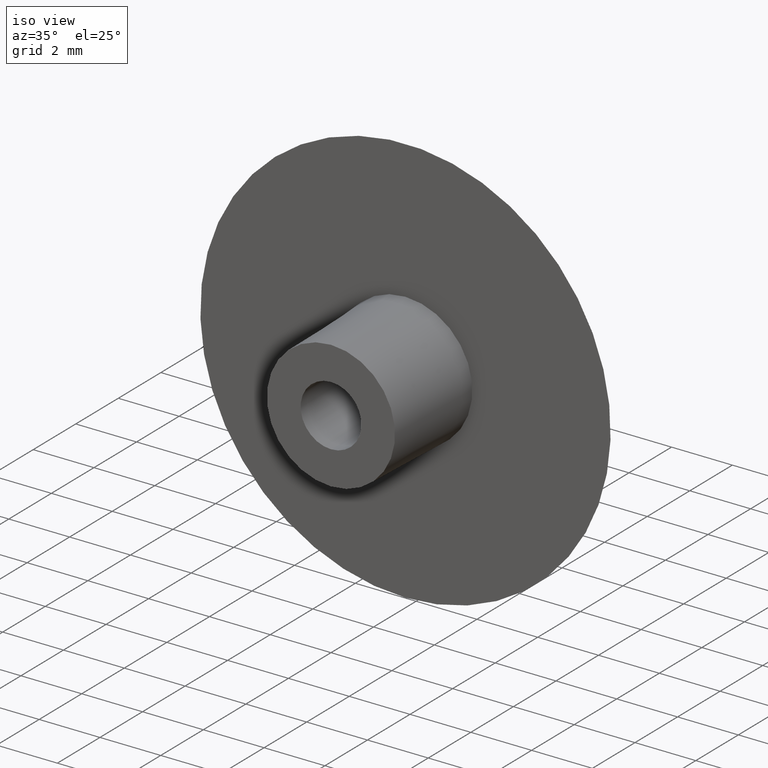
[diagram: clean part render]
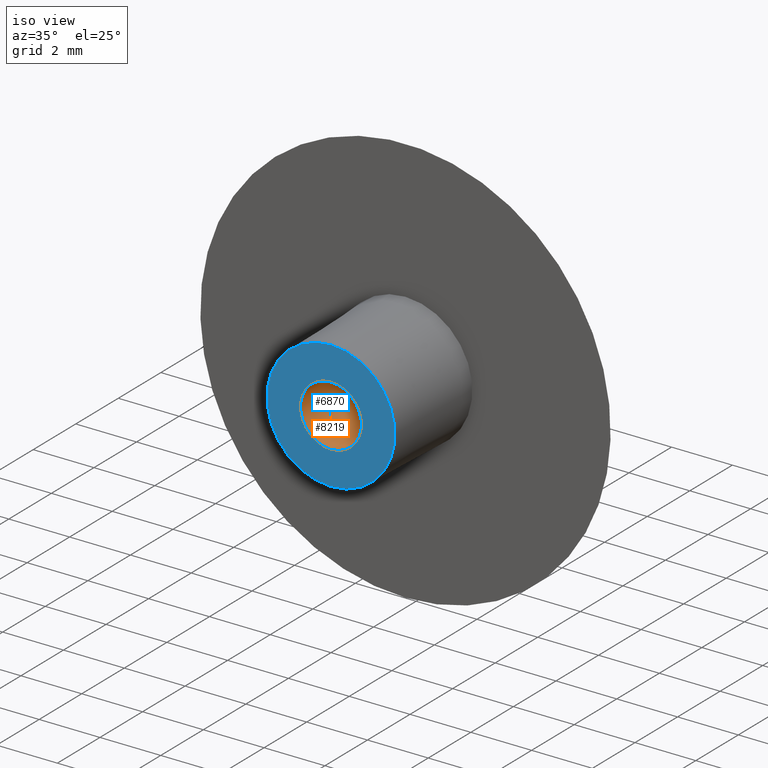
[diagram: same view with the hole feature highlighted: cylindrical wall and planar end face, labeled with their STEP entity ids]
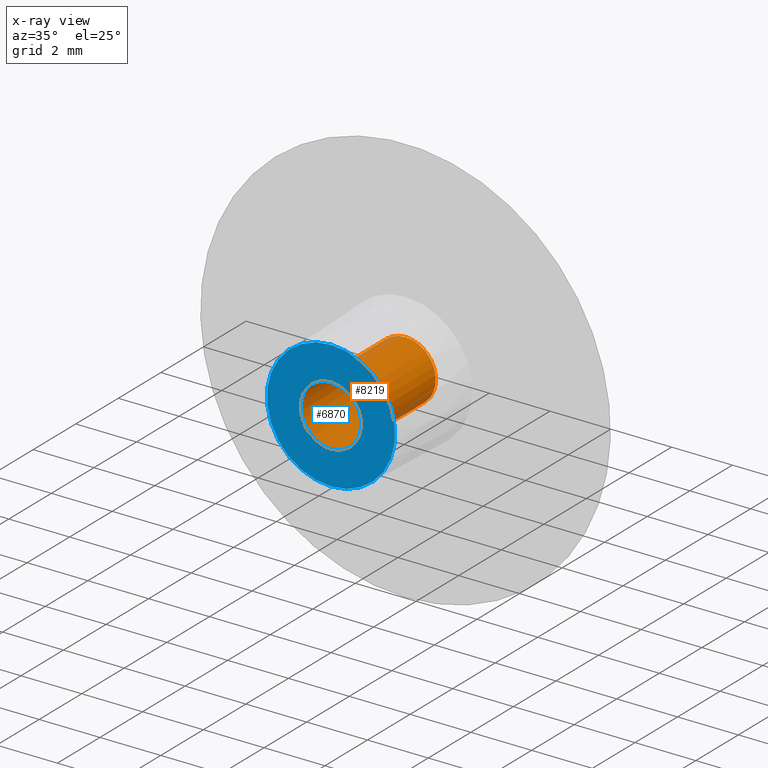
[diagram: x-ray of the same camera — body ghosted, the hole faces saturated]
A machine part, iso view. The highlighted faces form one hole feature of diameter 2 mm: the cylindrical wall (entity #8219, orange) and its adjacent planar end face (entity #6870, blue) — they share a circular edge in the B-rep.
The next image is the same camera in x-ray (body ghosted, the hole faces saturated) — the bore reads through the body.
Wall:
#141 = DIRECTION ( 'NONE',  ( -0.000000000000000000, -1.000000000000000000, -0.000000000000000000 ) ) ;
#699 = CARTESIAN_POINT ( 'NONE',  ( 0.000000000000000000, 3.500000000000000000, 0.000000000000000000 ) ) ;
#1510 = CARTESIAN_POINT ( 'NONE',  ( 0.000000000000000000, 3.500000000000000000, 0.000000000000000000 ) ) ;
#1673 = DIRECTION ( 'NONE',  ( -0.000000000000000000, -1.000000000000000000, -0.000000000000000000 ) ) ;
#1768 = ORIENTED_EDGE ( 'NONE', *, *, #11433, .T. ) ;
#2398 = DIRECTION ( 'NONE',  ( -0.000000000000000000, -1.000000000000000000, -0.000000000000000000 ) ) ;
#2593 = CIRCLE ( 'NONE', #9785, 1.000000000000000000 ) ;
#2891 = EDGE_CURVE ( 'NONE', #6601, #6601, #2593, .T. ) ;
#3510 = AXIS2_PLACEMENT_3D ( 'NONE', #10842, #141, #4547 ) ;
#3589 = EDGE_LOOP ( 'NONE', ( #1768 ) ) ;
#4184 = DIRECTION ( 'NONE',  ( 0.000000000000000000, 0.000000000000000000, -1.000000000000000000 ) ) ;
#4547 = DIRECTION ( 'NONE',  ( 0.000000000000000000, 0.000000000000000000, -1.000000000000000000 ) ) ;
#5058 = CARTESIAN_POINT ( 'NONE',  ( 0.000000000000000000, 3.500000000000000000, -1.000000000000000000 ) ) ;
#5767 = ORIENTED_EDGE ( 'NONE', *, *, #2891, .F. ) ;
#6158 = VERTEX_POINT ( 'NONE', #9500 ) ;
#6601 = VERTEX_POINT ( 'NONE', #5058 ) ;
#6783 = FACE_OUTER_BOUND ( 'NONE', #3589, .T. ) ;
#8219 = ADVANCED_FACE ( 'NONE', ( #6783, #10815 ), #9159, .F. ) ;
#8766 = DIRECTION ( 'NONE',  ( 0.000000000000000000, 0.000000000000000000, -1.000000000000000000 ) ) ;
#8808 = CIRCLE ( 'NONE', #3510, 1.000000000000000444 ) ;
#9159 = CYLINDRICAL_SURFACE ( 'NONE', #11167, 1.000000000000000222 ) ;
#9500 = CARTESIAN_POINT ( 'NONE',  ( 0.000000000000000000, 0.000000000000000000, -1.000000000000000444 ) ) ;
#9785 = AXIS2_PLACEMENT_3D ( 'NONE', #1510, #2398, #4184 ) ;
#9930 = EDGE_LOOP ( 'NONE', ( #5767 ) ) ;
#10815 = FACE_OUTER_BOUND ( 'NONE', #9930, .T. ) ;
#10842 = CARTESIAN_POINT ( 'NONE',  ( 0.000000000000000000, 0.000000000000000000, 0.000000000000000000 ) ) ;
#11167 = AXIS2_PLACEMENT_3D ( 'NONE', #699, #1673, #8766 ) ;
#11433 = EDGE_CURVE ( 'NONE', #6158, #6158, #8808, .T. ) ;
End face:
#141 = DIRECTION ( 'NONE',  ( -0.000000000000000000, -1.000000000000000000, -0.000000000000000000 ) ) ;
#359 = CIRCLE ( 'NONE', #7577, 2.108349274507870685 ) ;
#1725 = CARTESIAN_POINT ( 'NONE',  ( 1.000000000000000444, -7.523163845262640051E-34, 0.000000000000000000 ) ) ;
#2281 = AXIS2_PLACEMENT_3D ( 'NONE', #1725, #6958, #9701 ) ;
#2654 = ORIENTED_EDGE ( 'NONE', *, *, #6195, .T. ) ;
#3510 = AXIS2_PLACEMENT_3D ( 'NONE', #10842, #141, #4547 ) ;
#4326 = EDGE_LOOP ( 'NONE', ( #9337 ) ) ;
#4344 = CARTESIAN_POINT ( 'NONE',  ( 0.000000000000000000, 0.000000000000000000, 0.000000000000000000 ) ) ;
#4547 = DIRECTION ( 'NONE',  ( 0.000000000000000000, 0.000000000000000000, -1.000000000000000000 ) ) ;
#5249 = DIRECTION ( 'NONE',  ( 0.000000000000000000, 0.000000000000000000, -1.000000000000000000 ) ) ;
#5765 = VERTEX_POINT ( 'NONE', #10754 ) ;
#6158 = VERTEX_POINT ( 'NONE', #9500 ) ;
#6195 = EDGE_CURVE ( 'NONE', #5765, #5765, #359, .T. ) ;
#6593 = EDGE_LOOP ( 'NONE', ( #2654 ) ) ;
#6870 = ADVANCED_FACE ( 'NONE', ( #11473, #7605 ), #7072, .T. ) ;
#6958 = DIRECTION ( 'NONE',  ( 0.000000000000000000, -1.000000000000000000, -0.000000000000000000 ) ) ;
#7072 = PLANE ( 'NONE',  #2281 ) ;
#7577 = AXIS2_PLACEMENT_3D ( 'NONE', #4344, #10554, #5249 ) ;
#7605 = FACE_BOUND ( 'NONE', #4326, .T. ) ;
#8808 = CIRCLE ( 'NONE', #3510, 1.000000000000000444 ) ;
#9337 = ORIENTED_EDGE ( 'NONE', *, *, #11433, .F. ) ;
#9500 = CARTESIAN_POINT ( 'NONE',  ( 0.000000000000000000, 0.000000000000000000, -1.000000000000000444 ) ) ;
#9701 = DIRECTION ( 'NONE',  ( 0.000000000000000000, 0.000000000000000000, -1.000000000000000000 ) ) ;
#10554 = DIRECTION ( 'NONE',  ( -0.000000000000000000, -1.000000000000000000, -0.000000000000000000 ) ) ;
#10754 = CARTESIAN_POINT ( 'NONE',  ( 0.000000000000000000, 0.000000000000000000, -2.108349274507870685 ) ) ;
#10842 = CARTESIAN_POINT ( 'NONE',  ( 0.000000000000000000, 0.000000000000000000, 0.000000000000000000 ) ) ;
#11433 = EDGE_CURVE ( 'NONE', #6158, #6158, #8808, .T. ) ;
#11473 = FACE_OUTER_BOUND ( 'NONE', #6593, .T. ) ;